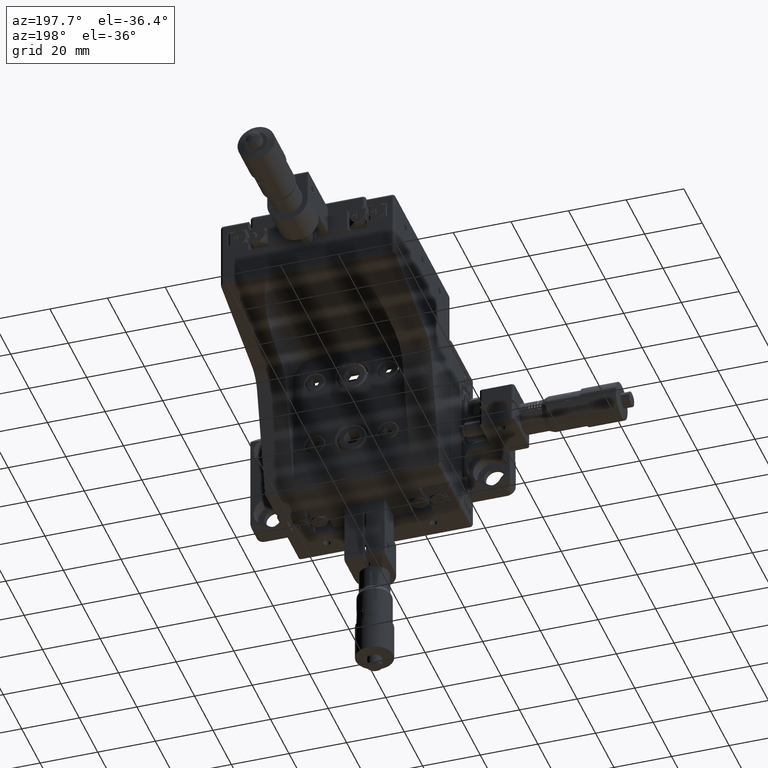
[diagram: clean part render]
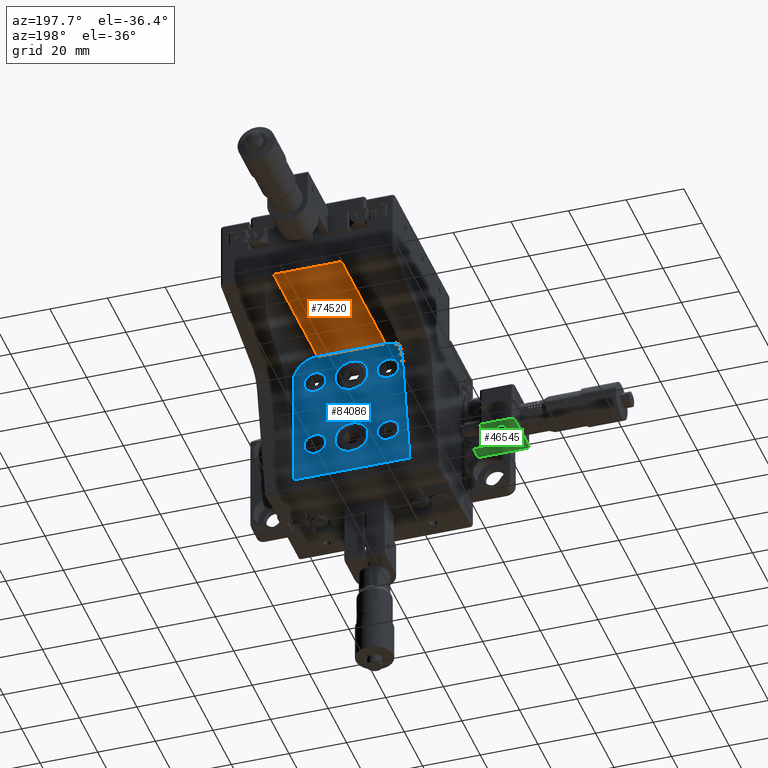
[diagram: same view with three faces highlighted in distinct colors, each labeled with its STEP entity id]
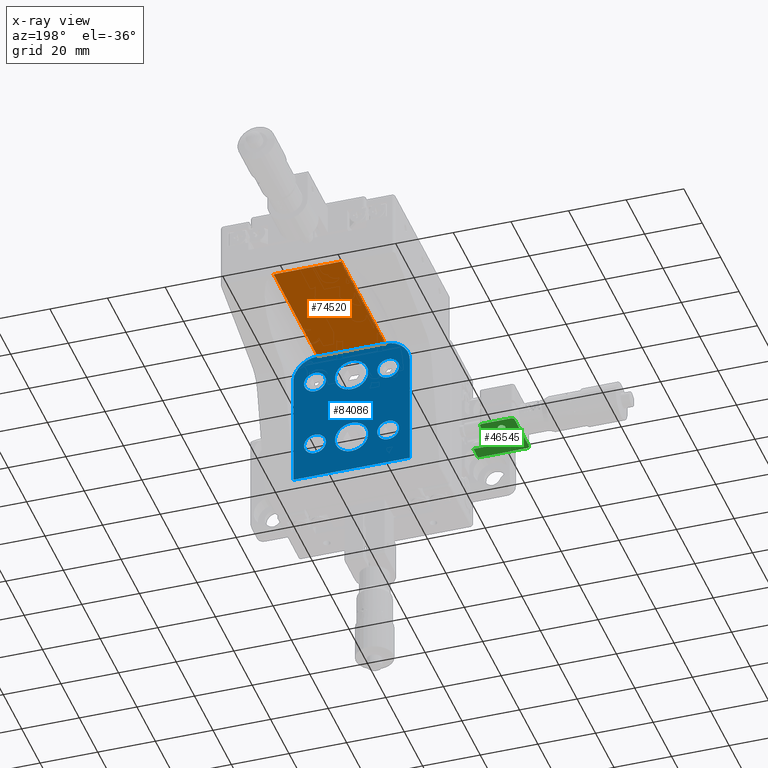
[diagram: x-ray of the same camera — body ghosted, the three highlighted faces saturated]
A machine part, auxiliary view with three faces highlighted in distinct colors.
The next image is the same camera in x-ray (body ghosted, the three faces saturated) — at least one of them is partly hidden behind the body in this view.
Their STEP definitions:

[orange] entity #74520 — the highlighted planar face has unit normal (0, 0, 1).
#4349 = CARTESIAN_POINT ( 'NONE',  ( 11.75000000000023600, 37.29999999999989800, 23.00000000000156700 ) ) ;
#5624 = EDGE_CURVE ( 'NONE', #69417, #17641, #11126, .T. ) ;
#10739 = CARTESIAN_POINT ( 'NONE',  ( 11.75000000000023600, 37.29999999999989800, 23.00000000000156700 ) ) ;
#11126 = LINE ( 'NONE', #23947, #47807 ) ;
#11332 = DIRECTION ( 'NONE',  ( 1.000000000000000000, -9.801187639273052300E-017, -1.062728510393519400E-014 ) ) ;
#11888 = ORIENTED_EDGE ( 'NONE', *, *, #42617, .T. ) ;
#12180 = VERTEX_POINT ( 'NONE', #33542 ) ;
#17641 = VERTEX_POINT ( 'NONE', #63613 ) ;
#18682 = VECTOR ( 'NONE', #32008, 1000.000000000000000 ) ;
#20136 = ORIENTED_EDGE ( 'NONE', *, *, #46000, .F. ) ;
#20641 = FACE_OUTER_BOUND ( 'NONE', #42185, .T. ) ;
#23947 = CARTESIAN_POINT ( 'NONE',  ( -11.74999999999976400, 37.29999999999989800, 23.00000000000182300 ) ) ;
#26081 = DIRECTION ( 'NONE',  ( 1.000000000000000000, -1.184931223549757600E-015, -1.062728510393519400E-014 ) ) ;
#27006 = LINE ( 'NONE', #60560, #61632 ) ;
#30666 = ORIENTED_EDGE ( 'NONE', *, *, #75141, .F. ) ;
#31230 = VECTOR ( 'NONE', #59062, 1000.000000000000000 ) ;
#32008 = DIRECTION ( 'NONE',  ( 1.000000000000000000, -9.801187639273052300E-017, -1.062728510393519400E-014 ) ) ;
#33542 = CARTESIAN_POINT ( 'NONE',  ( 11.75000000000024300, 85.29984404295234400, 23.00000000000156700 ) ) ;
#37005 = LINE ( 'NONE', #86396, #18682 ) ;
#40534 = CARTESIAN_POINT ( 'NONE',  ( 11.75000000000023600, 37.29999999999989800, 23.00000000000156700 ) ) ;
#42185 = EDGE_LOOP ( 'NONE', ( #11888, #30666, #20136, #82849 ) ) ;
#42617 = EDGE_CURVE ( 'NONE', #17641, #12180, #27006, .T. ) ;
#46000 = EDGE_CURVE ( 'NONE', #69417, #67757, #37005, .T. ) ;
#47807 = VECTOR ( 'NONE', #72357, 1000.000000000000000 ) ;
#52375 = PLANE ( 'NONE',  #76891 ) ;
#52679 = DIRECTION ( 'NONE',  ( 1.062728510393519400E-014, 2.374402757743493500E-017, 1.000000000000000000 ) ) ;
#59062 = DIRECTION ( 'NONE',  ( 1.535230276239501100E-016, 1.000000000000000000, -2.374402757743618900E-017 ) ) ;
#60560 = CARTESIAN_POINT ( 'NONE',  ( 30.25000000000023800, 85.29984404295230100, 23.00000000000136800 ) ) ;
#61632 = VECTOR ( 'NONE', #26081, 1000.000000000000000 ) ;
#63613 = CARTESIAN_POINT ( 'NONE',  ( -11.74999999999975700, 85.29984404295237300, 23.00000000000181900 ) ) ;
#67757 = VERTEX_POINT ( 'NONE', #40534 ) ;
#69417 = VERTEX_POINT ( 'NONE', #88076 ) ;
#72357 = DIRECTION ( 'NONE',  ( 1.535230276239501100E-016, 1.000000000000000000, -2.374402757743618900E-017 ) ) ;
#74520 = ADVANCED_FACE ( 'NONE', ( #20641 ), #52375, .F. ) ;
#75141 = EDGE_CURVE ( 'NONE', #67757, #12180, #84160, .T. ) ;
#76891 = AXIS2_PLACEMENT_3D ( 'NONE', #4349, #52679, #11332 ) ;
#82849 = ORIENTED_EDGE ( 'NONE', *, *, #5624, .T. ) ;
#84160 = LINE ( 'NONE', #10739, #31230 ) ;
#86396 = CARTESIAN_POINT ( 'NONE',  ( 11.75000000000023600, 37.29999999999989800, 23.00000000000156700 ) ) ;
#88076 = CARTESIAN_POINT ( 'NONE',  ( -11.74999999999976400, 37.29999999999989800, 23.00000000000182300 ) ) ;

[blue] entity #84086 — the highlighted planar face has unit normal (-0, -1, 0).
#212 = CARTESIAN_POINT ( 'NONE',  ( 20.25000000000013100, 37.29999999999989800, 14.50000000000149000 ) ) ;
#1385 = AXIS2_PLACEMENT_3D ( 'NONE', #4598, #52900, #11555 ) ;
#1777 = EDGE_LOOP ( 'NONE', ( #37270, #83965 ) ) ;
#2281 = CARTESIAN_POINT ( 'NONE',  ( -1.878237630009716100E-013, 37.29999999999989800, -18.45436999999831300 ) ) ;
#2692 = EDGE_CURVE ( 'NONE', #8856, #38206, #74186, .T. ) ;
#2759 = AXIS2_PLACEMENT_3D ( 'NONE', #49835, #8495, #56785 ) ;
#3290 = ORIENTED_EDGE ( 'NONE', *, *, #55294, .T. ) ;
#3603 = CIRCLE ( 'NONE', #64088, 3.770629999999997000 ) ;
#3776 = ORIENTED_EDGE ( 'NONE', *, *, #64044, .F. ) ;
#3888 = CIRCLE ( 'NONE', #15025, 8.499999999999987600 ) ;
#4150 = CARTESIAN_POINT ( 'NONE',  ( -12.70000000000009000, 37.29999999999989800, -8.929369999998179700 ) ) ;
#4387 = CIRCLE ( 'NONE', #30864, 3.770629999999997000 ) ;
#4598 = CARTESIAN_POINT ( 'NONE',  ( 12.70000000000013800, 37.29999999999989800, 12.70000000000156400 ) ) ;
#5126 = VERTEX_POINT ( 'NONE', #79925 ) ;
#5272 = CARTESIAN_POINT ( 'NONE',  ( 12.70000000000010100, 37.29999999999989800, 8.929370000001567200 ) ) ;
#5389 = CIRCLE ( 'NONE', #63707, 5.754370000000001500 ) ;
#5863 = DIRECTION ( 'NONE',  ( 1.535230276239501100E-016, 1.000000000000000000, -2.374402757743618900E-017 ) ) ;
#6840 = CARTESIAN_POINT ( 'NONE',  ( -1.283695372222837200E-013, 37.29999999999989800, -12.69999999999831000 ) ) ;
#8097 = EDGE_CURVE ( 'NONE', #47310, #39276, #56777, .T. ) ;
#8495 = DIRECTION ( 'NONE',  ( 1.535230276239501100E-016, 1.000000000000000000, -2.374402757743618900E-017 ) ) ;
#8856 = VERTEX_POINT ( 'NONE', #45057 ) ;
#9821 = CARTESIAN_POINT ( 'NONE',  ( -12.69999999999990200, 37.29999999999989800, 8.929370000001828300 ) ) ;
#10177 = DIRECTION ( 'NONE',  ( 1.535230276239501100E-016, 1.000000000000000000, -2.374402757743618900E-017 ) ) ;
#11535 = EDGE_CURVE ( 'NONE', #63652, #18922, #25898, .T. ) ;
#11555 = DIRECTION ( 'NONE',  ( -1.012136339855403200E-014, 0.0000000000000000000, -1.000000000000000000 ) ) ;
#11795 = CARTESIAN_POINT ( 'NONE',  ( -12.69999999999986400, 37.29999999999989800, 12.70000000000182700 ) ) ;
#12092 = ORIENTED_EDGE ( 'NONE', *, *, #39623, .T. ) ;
#12149 = CIRCLE ( 'NONE', #37429, 5.754370000000001500 ) ;
#12257 = CARTESIAN_POINT ( 'NONE',  ( -20.24999999999984400, 37.29999999999989800, 14.50000000000191500 ) ) ;
#12534 = VERTEX_POINT ( 'NONE', #9821 ) ;
#12720 = VERTEX_POINT ( 'NONE', #67192 ) ;
#12877 = ORIENTED_EDGE ( 'NONE', *, *, #2692, .T. ) ;
#13568 = EDGE_LOOP ( 'NONE', ( #60976, #21940 ) ) ;
#13717 = DIRECTION ( 'NONE',  ( 1.535230276239501100E-016, 1.000000000000000000, -2.374402757743618900E-017 ) ) ;
#13790 = DIRECTION ( 'NONE',  ( -1.033201302291786500E-014, 0.0000000000000000000, -1.000000000000000000 ) ) ;
#13948 = AXIS2_PLACEMENT_3D ( 'NONE', #51514, #10177, #58483 ) ;
#14153 = CARTESIAN_POINT ( 'NONE',  ( 7.585420534750305500E-014, 37.29999999999989800, 6.945630000001694200 ) ) ;
#14254 = FACE_BOUND ( 'NONE', #1777, .T. ) ;
#15025 = AXIS2_PLACEMENT_3D ( 'NONE', #79351, #37916, #86296 ) ;
#16190 = LINE ( 'NONE', #12257, #50721 ) ;
#16420 = FACE_BOUND ( 'NONE', #13568, .T. ) ;
#17318 = DIRECTION ( 'NONE',  ( 1.535230276239501100E-016, 1.000000000000000000, -2.374402757743618900E-017 ) ) ;
#17568 = VERTEX_POINT ( 'NONE', #212 ) ;
#18059 = VERTEX_POINT ( 'NONE', #41980 ) ;
#18373 = AXIS2_PLACEMENT_3D ( 'NONE', #32620, #80947, #39490 ) ;
#18682 = VECTOR ( 'NONE', #32008, 1000.000000000000000 ) ;
#18738 = DIRECTION ( 'NONE',  ( -1.012136339855402700E-014, 0.0000000000000000000, -1.000000000000000000 ) ) ;
#18922 = VERTEX_POINT ( 'NONE', #54798 ) ;
#19131 = EDGE_CURVE ( 'NONE', #17568, #8856, #53198, .T. ) ;
#20010 = VERTEX_POINT ( 'NONE', #14153 ) ;
#20186 = DIRECTION ( 'NONE',  ( 1.535230276239501100E-016, 1.000000000000000000, -2.374402757743618900E-017 ) ) ;
#21413 = ORIENTED_EDGE ( 'NONE', *, *, #79655, .F. ) ;
#21940 = ORIENTED_EDGE ( 'NONE', *, *, #64179, .F. ) ;
#22307 = EDGE_CURVE ( 'NONE', #29107, #18059, #12149, .T. ) ;
#22374 = DIRECTION ( 'NONE',  ( 1.535230276239501100E-016, 1.000000000000000000, -2.374402757743618900E-017 ) ) ;
#22750 = DIRECTION ( 'NONE',  ( -1.000000000000000000, 9.801187639273051100E-017, 1.033201302291786500E-014 ) ) ;
#24236 = ORIENTED_EDGE ( 'NONE', *, *, #46000, .T. ) ;
#25553 = CARTESIAN_POINT ( 'NONE',  ( 11.75000000000015300, 37.29999999999989800, 14.50000000000157400 ) ) ;
#25898 = CIRCLE ( 'NONE', #13948, 3.770629999999997000 ) ;
#27585 = DIRECTION ( 'NONE',  ( 1.095573382326907700E-014, 2.374402757743490100E-017, 1.000000000000000000 ) ) ;
#28108 = CIRCLE ( 'NONE', #1385, 3.770629999999997000 ) ;
#28452 = ORIENTED_EDGE ( 'NONE', *, *, #72758, .F. ) ;
#29107 = VERTEX_POINT ( 'NONE', #2281 ) ;
#29389 = CARTESIAN_POINT ( 'NONE',  ( 30.24999999999973400, 37.29999999999989100, -25.80318041582689000 ) ) ;
#29473 = CIRCLE ( 'NONE', #48205, 8.499999999999991100 ) ;
#29988 = DIRECTION ( 'NONE',  ( 1.535230276239501100E-016, 1.000000000000000000, -2.374402757743618900E-017 ) ) ;
#30371 = CARTESIAN_POINT ( 'NONE',  ( 12.69999999999990500, 37.29999999999989800, -8.929369999998444400 ) ) ;
#30810 = CIRCLE ( 'NONE', #34343, 5.754370000000001500 ) ;
#30864 = AXIS2_PLACEMENT_3D ( 'NONE', #71430, #29988, #78335 ) ;
#31390 = EDGE_CURVE ( 'NONE', #67757, #17568, #3888, .T. ) ;
#32008 = DIRECTION ( 'NONE',  ( 1.000000000000000000, -9.801187639273052300E-017, -1.062728510393519400E-014 ) ) ;
#32277 = VERTEX_POINT ( 'NONE', #82790 ) ;
#32422 = EDGE_CURVE ( 'NONE', #20010, #5126, #5389, .T. ) ;
#32491 = DIRECTION ( 'NONE',  ( 1.033201302291786600E-014, 2.374402757743496300E-017, 1.000000000000000000 ) ) ;
#32605 = FACE_BOUND ( 'NONE', #65092, .T. ) ;
#32620 = CARTESIAN_POINT ( 'NONE',  ( -12.69999999999986400, 37.29999999999989800, 12.70000000000182700 ) ) ;
#33581 = EDGE_LOOP ( 'NONE', ( #40894, #28452 ) ) ;
#33947 = EDGE_CURVE ( 'NONE', #5126, #20010, #30810, .T. ) ;
#34343 = AXIS2_PLACEMENT_3D ( 'NONE', #47165, #5863, #54139 ) ;
#34844 = VECTOR ( 'NONE', #58414, 1000.000000000000000 ) ;
#36777 = AXIS2_PLACEMENT_3D ( 'NONE', #6840, #55116, #13790 ) ;
#37005 = LINE ( 'NONE', #86396, #18682 ) ;
#37270 = ORIENTED_EDGE ( 'NONE', *, *, #32422, .F. ) ;
#37429 = AXIS2_PLACEMENT_3D ( 'NONE', #55031, #13717, #62038 ) ;
#37916 = DIRECTION ( 'NONE',  ( 1.535230276239501100E-016, 1.000000000000000000, -2.374402757743618900E-017 ) ) ;
#38206 = VERTEX_POINT ( 'NONE', #60590 ) ;
#39276 = VERTEX_POINT ( 'NONE', #39731 ) ;
#39490 = DIRECTION ( 'NONE',  ( -1.012136339855402700E-014, 0.0000000000000000000, -1.000000000000000000 ) ) ;
#39623 = EDGE_CURVE ( 'NONE', #38206, #12720, #16190, .T. ) ;
#39731 = CARTESIAN_POINT ( 'NONE',  ( -12.70000000000016600, 37.29999999999989800, -16.47062999999817400 ) ) ;
#40534 = CARTESIAN_POINT ( 'NONE',  ( 11.75000000000023600, 37.29999999999989800, 23.00000000000156700 ) ) ;
#40894 = ORIENTED_EDGE ( 'NONE', *, *, #22307, .F. ) ;
#41136 = DIRECTION ( 'NONE',  ( 1.535230276239501100E-016, 1.000000000000000000, -2.374402757743618900E-017 ) ) ;
#41980 = CARTESIAN_POINT ( 'NONE',  ( -7.008210748460210900E-014, 37.29999999999989800, -6.945629999998309300 ) ) ;
#44277 = EDGE_CURVE ( 'NONE', #12534, #81037, #79500, .T. ) ;
#45057 = CARTESIAN_POINT ( 'NONE',  ( 20.24999999999975100, 37.29999999999989100, -25.80318041582679100 ) ) ;
#46000 = EDGE_CURVE ( 'NONE', #69417, #67757, #37005, .T. ) ;
#46149 = ORIENTED_EDGE ( 'NONE', *, *, #19131, .T. ) ;
#47165 = CARTESIAN_POINT ( 'NONE',  ( 1.353084311261909500E-013, 37.29999999999989800, 12.70000000000169600 ) ) ;
#47310 = VERTEX_POINT ( 'NONE', #4150 ) ;
#47849 = VERTEX_POINT ( 'NONE', #5272 ) ;
#48205 = AXIS2_PLACEMENT_3D ( 'NONE', #58695, #17318, #65625 ) ;
#49835 = CARTESIAN_POINT ( 'NONE',  ( 12.70000000000013800, 37.29999999999989800, 12.70000000000156400 ) ) ;
#50721 = VECTOR ( 'NONE', #27585, 1000.000000000000000 ) ;
#51514 = CARTESIAN_POINT ( 'NONE',  ( 12.69999999999986800, 37.29999999999989800, -12.69999999999844100 ) ) ;
#52900 = DIRECTION ( 'NONE',  ( 1.535230276239501100E-016, 1.000000000000000000, -2.374402757743618900E-017 ) ) ;
#53198 = LINE ( 'NONE', #85894, #34844 ) ;
#53332 = AXIS2_PLACEMENT_3D ( 'NONE', #25553, #73916, #32491 ) ;
#54139 = DIRECTION ( 'NONE',  ( -1.033201302291786600E-014, 0.0000000000000000000, -1.000000000000000000 ) ) ;
#54348 = EDGE_CURVE ( 'NONE', #81037, #12534, #67552, .T. ) ;
#54798 = CARTESIAN_POINT ( 'NONE',  ( 12.69999999999982900, 37.29999999999989800, -16.47062999999844000 ) ) ;
#55031 = CARTESIAN_POINT ( 'NONE',  ( -1.283695372222837200E-013, 37.29999999999989800, -12.69999999999831000 ) ) ;
#55116 = DIRECTION ( 'NONE',  ( 1.535230276239501100E-016, 1.000000000000000000, -2.374402757743618900E-017 ) ) ;
#55294 = EDGE_CURVE ( 'NONE', #12720, #69417, #29473, .T. ) ;
#55726 = VECTOR ( 'NONE', #22750, 1000.000000000000000 ) ;
#56777 = CIRCLE ( 'NONE', #79378, 3.770629999999997000 ) ;
#56785 = DIRECTION ( 'NONE',  ( -1.012136339855403200E-014, 0.0000000000000000000, -1.000000000000000000 ) ) ;
#57691 = EDGE_CURVE ( 'NONE', #47849, #32277, #85181, .T. ) ;
#58414 = DIRECTION ( 'NONE',  ( -9.552362022478851900E-015, -2.374402757743504000E-017, -1.000000000000000000 ) ) ;
#58483 = DIRECTION ( 'NONE',  ( -1.012136339855403200E-014, 0.0000000000000000000, -1.000000000000000000 ) ) ;
#58695 = CARTESIAN_POINT ( 'NONE',  ( -11.74999999999984700, 37.29999999999989800, 14.50000000000182400 ) ) ;
#59713 = ORIENTED_EDGE ( 'NONE', *, *, #11535, .F. ) ;
#60127 = DIRECTION ( 'NONE',  ( 1.535230276239501100E-016, 1.000000000000000000, -2.374402757743618900E-017 ) ) ;
#60590 = CARTESIAN_POINT ( 'NONE',  ( -20.25000000000028100, 37.29999999999989800, -25.80318041582636100 ) ) ;
#60976 = ORIENTED_EDGE ( 'NONE', *, *, #57691, .F. ) ;
#61573 = CARTESIAN_POINT ( 'NONE',  ( -12.70000000000012700, 37.29999999999989800, -12.69999999999817900 ) ) ;
#62038 = DIRECTION ( 'NONE',  ( -1.033201302291786500E-014, 0.0000000000000000000, -1.000000000000000000 ) ) ;
#63228 = AXIS2_PLACEMENT_3D ( 'NONE', #11795, #60127, #18738 ) ;
#63652 = VERTEX_POINT ( 'NONE', #30371 ) ;
#63707 = AXIS2_PLACEMENT_3D ( 'NONE', #63757, #22374, #70781 ) ;
#63757 = CARTESIAN_POINT ( 'NONE',  ( 1.353084311261909500E-013, 37.29999999999989800, 12.70000000000169600 ) ) ;
#64044 = EDGE_CURVE ( 'NONE', #39276, #47310, #4387, .T. ) ;
#64088 = AXIS2_PLACEMENT_3D ( 'NONE', #82565, #41136, #89538 ) ;
#64179 = EDGE_CURVE ( 'NONE', #32277, #47849, #28108, .T. ) ;
#65092 = EDGE_LOOP ( 'NONE', ( #76979, #72583 ) ) ;
#65625 = DIRECTION ( 'NONE',  ( -1.040834085586085400E-014, 0.0000000000000000000, -1.000000000000000000 ) ) ;
#67192 = CARTESIAN_POINT ( 'NONE',  ( -20.24999999999984400, 37.29999999999989800, 14.50000000000191500 ) ) ;
#67220 = FACE_OUTER_BOUND ( 'NONE', #77274, .T. ) ;
#67552 = CIRCLE ( 'NONE', #63228, 3.770629999999998800 ) ;
#67757 = VERTEX_POINT ( 'NONE', #40534 ) ;
#68558 = DIRECTION ( 'NONE',  ( -1.012136339855403200E-014, 0.0000000000000000000, -1.000000000000000000 ) ) ;
#69374 = CARTESIAN_POINT ( 'NONE',  ( -12.69999999999982500, 37.29999999999989800, 16.47063000000182600 ) ) ;
#69389 = FACE_BOUND ( 'NONE', #74890, .T. ) ;
#69417 = VERTEX_POINT ( 'NONE', #88076 ) ;
#69573 = CIRCLE ( 'NONE', #36777, 5.754370000000001500 ) ;
#70781 = DIRECTION ( 'NONE',  ( -1.033201302291786600E-014, 0.0000000000000000000, -1.000000000000000000 ) ) ;
#71430 = CARTESIAN_POINT ( 'NONE',  ( -12.70000000000012700, 37.29999999999989800, -12.69999999999817900 ) ) ;
#72583 = ORIENTED_EDGE ( 'NONE', *, *, #54348, .F. ) ;
#72630 = EDGE_LOOP ( 'NONE', ( #3776, #85561 ) ) ;
#72758 = EDGE_CURVE ( 'NONE', #18059, #29107, #69573, .T. ) ;
#73219 = ORIENTED_EDGE ( 'NONE', *, *, #31390, .T. ) ;
#73916 = DIRECTION ( 'NONE',  ( -1.535230276239501100E-016, -1.000000000000000000, 2.374402757743655000E-017 ) ) ;
#74186 = LINE ( 'NONE', #29389, #55726 ) ;
#74890 = EDGE_LOOP ( 'NONE', ( #21413, #59713 ) ) ;
#76979 = ORIENTED_EDGE ( 'NONE', *, *, #44277, .F. ) ;
#77274 = EDGE_LOOP ( 'NONE', ( #12877, #12092, #3290, #24236, #73219, #46149 ) ) ;
#78335 = DIRECTION ( 'NONE',  ( -1.012136339855403200E-014, 0.0000000000000000000, -1.000000000000000000 ) ) ;
#79351 = CARTESIAN_POINT ( 'NONE',  ( 11.75000000000015300, 37.29999999999989800, 14.50000000000157400 ) ) ;
#79378 = AXIS2_PLACEMENT_3D ( 'NONE', #61573, #20186, #68558 ) ;
#79500 = CIRCLE ( 'NONE', #18373, 3.770629999999998800 ) ;
#79655 = EDGE_CURVE ( 'NONE', #18922, #63652, #3603, .T. ) ;
#79925 = CARTESIAN_POINT ( 'NONE',  ( 1.935958608638725300E-013, 37.29999999999989800, 18.45437000000169900 ) ) ;
#80947 = DIRECTION ( 'NONE',  ( 1.535230276239501100E-016, 1.000000000000000000, -2.374402757743618900E-017 ) ) ;
#81037 = VERTEX_POINT ( 'NONE', #69374 ) ;
#82565 = CARTESIAN_POINT ( 'NONE',  ( 12.69999999999986800, 37.29999999999989800, -12.69999999999844100 ) ) ;
#82790 = CARTESIAN_POINT ( 'NONE',  ( 12.70000000000017700, 37.29999999999989800, 16.47063000000156000 ) ) ;
#83965 = ORIENTED_EDGE ( 'NONE', *, *, #33947, .F. ) ;
#84086 = ADVANCED_FACE ( 'NONE', ( #32605, #87736, #69389, #16420, #14254, #85552, #67220 ), #87482, .F. ) ;
#85181 = CIRCLE ( 'NONE', #2759, 3.770629999999997000 ) ;
#85552 = FACE_BOUND ( 'NONE', #33581, .T. ) ;
#85561 = ORIENTED_EDGE ( 'NONE', *, *, #8097, .F. ) ;
#85894 = CARTESIAN_POINT ( 'NONE',  ( 20.24999999999970200, 37.29999999999989100, -29.99999999999852200 ) ) ;
#86296 = DIRECTION ( 'NONE',  ( 1.040834085586085800E-014, 0.0000000000000000000, 1.000000000000000000 ) ) ;
#86396 = CARTESIAN_POINT ( 'NONE',  ( 11.75000000000023600, 37.29999999999989800, 23.00000000000156700 ) ) ;
#87482 = PLANE ( 'NONE',  #53332 ) ;
#87736 = FACE_BOUND ( 'NONE', #72630, .T. ) ;
#88076 = CARTESIAN_POINT ( 'NONE',  ( -11.74999999999976400, 37.29999999999989800, 23.00000000000182300 ) ) ;
#89538 = DIRECTION ( 'NONE',  ( -1.012136339855403200E-014, 0.0000000000000000000, -1.000000000000000000 ) ) ;

[green] entity #46545 — the highlighted planar face has unit normal (-0, 0, -1).
#317 = EDGE_CURVE ( 'NONE', #83489, #57352, #15674, .T. ) ;
#586 = CARTESIAN_POINT ( 'NONE',  ( -52.00000000000000700, 23.80000000000004300, -6.999999999999887200 ) ) ;
#908 = DIRECTION ( 'NONE',  ( -1.000000000000000000, 1.110223024625156500E-016, 1.084202172485504400E-017 ) ) ;
#1164 = AXIS2_PLACEMENT_3D ( 'NONE', #61438, #20054, #68413 ) ;
#2658 = ORIENTED_EDGE ( 'NONE', *, *, #37470, .F. ) ;
#3184 = CARTESIAN_POINT ( 'NONE',  ( -45.00000000000000700, 6.300000000000040700, -6.999999999999886300 ) ) ;
#4106 = CARTESIAN_POINT ( 'NONE',  ( -40.00000000000003600, 11.30000000000004300, -6.999999999999887200 ) ) ;
#4626 = DIRECTION ( 'NONE',  ( -1.000000000000000000, 1.110223024625156500E-016, 1.084202172485504400E-017 ) ) ;
#4636 = VERTEX_POINT ( 'NONE', #51938 ) ;
#4935 = EDGE_CURVE ( 'NONE', #23430, #5590, #19646, .T. ) ;
#5590 = VERTEX_POINT ( 'NONE', #58097 ) ;
#6328 = CARTESIAN_POINT ( 'NONE',  ( -46.50000000000000700, 19.90000000000004100, -6.999999999999887200 ) ) ;
#7693 = CIRCLE ( 'NONE', #66220, 1.000000000000000900 ) ;
#7809 = EDGE_CURVE ( 'NONE', #70868, #83489, #40599, .T. ) ;
#8867 = DIRECTION ( 'NONE',  ( -8.326672684688671600E-017, -1.000000000000000000, -0.0000000000000000000 ) ) ;
#9123 = CARTESIAN_POINT ( 'NONE',  ( -45.25000000000001400, 19.90000000000004100, -6.999999999999887200 ) ) ;
#10411 = DIRECTION ( 'NONE',  ( 0.0000000000000000000, 0.0000000000000000000, -1.000000000000000000 ) ) ;
#11682 = CARTESIAN_POINT ( 'NONE',  ( -37.31083962536210700, 6.300000000000031800, -6.999999999999886300 ) ) ;
#13173 = CARTESIAN_POINT ( 'NONE',  ( -52.00000000000000700, 22.80000000000004300, -6.999999999999887200 ) ) ;
#13290 = DIRECTION ( 'NONE',  ( -1.000000000000000000, 0.0000000000000000000, 0.0000000000000000000 ) ) ;
#13933 = DIRECTION ( 'NONE',  ( 0.0000000000000000000, 0.0000000000000000000, -1.000000000000000000 ) ) ;
#14186 = FACE_OUTER_BOUND ( 'NONE', #44616, .T. ) ;
#15674 = LINE ( 'NONE', #72477, #84782 ) ;
#15687 = VECTOR ( 'NONE', #85791, 1000.000000000000000 ) ;
#16390 = EDGE_CURVE ( 'NONE', #49672, #38150, #34396, .T. ) ;
#16595 = VERTEX_POINT ( 'NONE', #9123 ) ;
#17457 = DIRECTION ( 'NONE',  ( -6.439293542825925300E-015, 1.000000000000000000, 7.071774014546900300E-032 ) ) ;
#17477 = ORIENTED_EDGE ( 'NONE', *, *, #64396, .T. ) ;
#19646 = LINE ( 'NONE', #586, #72649 ) ;
#19685 = DIRECTION ( 'NONE',  ( -1.000000000000000000, 1.110223024625156500E-016, 1.084202172485504400E-017 ) ) ;
#20054 = DIRECTION ( 'NONE',  ( -1.084202172485504400E-017, 1.203706215242022400E-033, -1.000000000000000000 ) ) ;
#22625 = DIRECTION ( 'NONE',  ( 0.0000000000000000000, 0.0000000000000000000, -1.000000000000000000 ) ) ;
#23280 = CARTESIAN_POINT ( 'NONE',  ( -31.00000000000000400, 11.30000000000004200, -6.999999999999887200 ) ) ;
#23430 = VERTEX_POINT ( 'NONE', #13173 ) ;
#25065 = ORIENTED_EDGE ( 'NONE', *, *, #7809, .F. ) ;
#26304 = LINE ( 'NONE', #49163, #44648 ) ;
#26437 = CIRCLE ( 'NONE', #35149, 1.000000000000000900 ) ;
#28432 = EDGE_CURVE ( 'NONE', #49917, #84820, #26304, .T. ) ;
#29092 = ORIENTED_EDGE ( 'NONE', *, *, #44678, .T. ) ;
#29571 = AXIS2_PLACEMENT_3D ( 'NONE', #51746, #10411, #58724 ) ;
#29973 = EDGE_CURVE ( 'NONE', #4636, #16595, #45253, .T. ) ;
#30074 = AXIS2_PLACEMENT_3D ( 'NONE', #6328, #54608, #13290 ) ;
#30440 = CARTESIAN_POINT ( 'NONE',  ( -51.00000000000000700, 22.80000000000004300, -6.999999999999887200 ) ) ;
#33275 = CARTESIAN_POINT ( 'NONE',  ( -51.00000000000000700, 6.300000000000041600, -6.999999999999886300 ) ) ;
#34396 = LINE ( 'NONE', #79999, #48365 ) ;
#35149 = AXIS2_PLACEMENT_3D ( 'NONE', #30440, #78756, #37335 ) ;
#35672 = CARTESIAN_POINT ( 'NONE',  ( -34.00000000000000000, 6.300000000000039800, -6.999999999999886300 ) ) ;
#36336 = CARTESIAN_POINT ( 'NONE',  ( -34.00000000000000000, 6.300000000000039800, -6.999999999999887200 ) ) ;
#37242 = CARTESIAN_POINT ( 'NONE',  ( -40.00000000000011400, 22.80000000000005000, -6.999999999999887200 ) ) ;
#37335 = DIRECTION ( 'NONE',  ( -1.000000000000000000, 0.0000000000000000000, 0.0000000000000000000 ) ) ;
#37470 = EDGE_CURVE ( 'NONE', #16595, #4636, #56643, .T. ) ;
#38150 = VERTEX_POINT ( 'NONE', #11682 ) ;
#38261 = CARTESIAN_POINT ( 'NONE',  ( -34.00000000000000000, 11.30000000000004200, -6.999999999999887200 ) ) ;
#40599 = LINE ( 'NONE', #23280, #59082 ) ;
#41646 = ORIENTED_EDGE ( 'NONE', *, *, #60896, .T. ) ;
#44616 = EDGE_LOOP ( 'NONE', ( #86742, #17477, #82713, #29092, #47856, #41646, #88253, #25065, #70537, #84405, #66974, #81135 ) ) ;
#44648 = VECTOR ( 'NONE', #908, 1000.000000000000000 ) ;
#44678 = EDGE_CURVE ( 'NONE', #23430, #84820, #26437, .T. ) ;
#45253 = CIRCLE ( 'NONE', #30074, 1.249999999999994200 ) ;
#46545 = ADVANCED_FACE ( 'NONE', ( #69325, #14186 ), #75075, .T. ) ;
#47087 = LINE ( 'NONE', #36336, #61207 ) ;
#47345 = CARTESIAN_POINT ( 'NONE',  ( -41.00000000000010700, 23.80000000000004300, -6.999999999999887200 ) ) ;
#47856 = ORIENTED_EDGE ( 'NONE', *, *, #28432, .F. ) ;
#48365 = VECTOR ( 'NONE', #74006, 1000.000000000000000 ) ;
#49163 = CARTESIAN_POINT ( 'NONE',  ( 45.00000000000000000, 23.80000000000003600, -6.999999999999888100 ) ) ;
#49672 = VERTEX_POINT ( 'NONE', #35672 ) ;
#49917 = VERTEX_POINT ( 'NONE', #47345 ) ;
#50888 = CARTESIAN_POINT ( 'NONE',  ( -38.88916037463792500, 6.300000000000031800, -6.999999999999886300 ) ) ;
#51746 = CARTESIAN_POINT ( 'NONE',  ( -41.00000000000010700, 22.80000000000004300, -6.999999999999887200 ) ) ;
#51938 = CARTESIAN_POINT ( 'NONE',  ( -47.75000000000000000, 19.90000000000004100, -6.999999999999887200 ) ) ;
#52586 = AXIS2_PLACEMENT_3D ( 'NONE', #64008, #22625, #71020 ) ;
#52936 = EDGE_CURVE ( 'NONE', #38150, #77603, #70843, .T. ) ;
#54608 = DIRECTION ( 'NONE',  ( 0.0000000000000000000, 0.0000000000000000000, -1.000000000000000000 ) ) ;
#55256 = CARTESIAN_POINT ( 'NONE',  ( -51.00000000000000700, 7.300000000000070900, -6.999999999999887200 ) ) ;
#56643 = CIRCLE ( 'NONE', #52586, 1.249999999999994200 ) ;
#57352 = VERTEX_POINT ( 'NONE', #37242 ) ;
#57918 = VECTOR ( 'NONE', #4626, 1000.000000000000000 ) ;
#58097 = CARTESIAN_POINT ( 'NONE',  ( -52.00000000000000700, 7.300000000000069100, -6.999999999999886300 ) ) ;
#58718 = EDGE_CURVE ( 'NONE', #70868, #49672, #47087, .T. ) ;
#58724 = DIRECTION ( 'NONE',  ( -1.000000000000000000, 0.0000000000000000000, 0.0000000000000000000 ) ) ;
#59082 = VECTOR ( 'NONE', #64647, 1000.000000000000000 ) ;
#59472 = CIRCLE ( 'NONE', #29571, 1.000000000000000900 ) ;
#59703 = VERTEX_POINT ( 'NONE', #33275 ) ;
#60896 = EDGE_CURVE ( 'NONE', #49917, #57352, #59472, .T. ) ;
#61207 = VECTOR ( 'NONE', #8867, 1000.000000000000000 ) ;
#61438 = CARTESIAN_POINT ( 'NONE',  ( 45.00000000000000000, 23.80000000000003600, -6.999999999999888100 ) ) ;
#62254 = DIRECTION ( 'NONE',  ( -1.000000000000000000, 0.0000000000000000000, 0.0000000000000000000 ) ) ;
#64008 = CARTESIAN_POINT ( 'NONE',  ( -46.50000000000000700, 19.90000000000004100, -6.999999999999887200 ) ) ;
#64396 = EDGE_CURVE ( 'NONE', #59703, #5590, #7693, .T. ) ;
#64647 = DIRECTION ( 'NONE',  ( -1.000000000000000000, 1.110223024625156500E-016, 1.084202172485504400E-017 ) ) ;
#66220 = AXIS2_PLACEMENT_3D ( 'NONE', #55256, #13933, #62254 ) ;
#66313 = EDGE_LOOP ( 'NONE', ( #2658, #80842 ) ) ;
#66974 = ORIENTED_EDGE ( 'NONE', *, *, #52936, .T. ) ;
#68045 = CARTESIAN_POINT ( 'NONE',  ( -31.00000000000000400, 6.300000000000038900, -6.999999999999886300 ) ) ;
#68413 = DIRECTION ( 'NONE',  ( -1.000000000000000000, 1.110223024625156500E-016, 1.084202172485504400E-017 ) ) ;
#69325 = FACE_BOUND ( 'NONE', #66313, .T. ) ;
#69776 = DIRECTION ( 'NONE',  ( -8.326672684688671600E-017, -1.000000000000000000, 4.956352788505161500E-017 ) ) ;
#70537 = ORIENTED_EDGE ( 'NONE', *, *, #58718, .T. ) ;
#70843 = LINE ( 'NONE', #78840, #15687 ) ;
#70868 = VERTEX_POINT ( 'NONE', #38261 ) ;
#71020 = DIRECTION ( 'NONE',  ( -1.000000000000000000, 0.0000000000000000000, 0.0000000000000000000 ) ) ;
#71360 = VERTEX_POINT ( 'NONE', #3184 ) ;
#72477 = CARTESIAN_POINT ( 'NONE',  ( -40.00000000000012100, 23.79999999999948900, -6.999999999999887200 ) ) ;
#72649 = VECTOR ( 'NONE', #69776, 1000.000000000000000 ) ;
#74006 = DIRECTION ( 'NONE',  ( -1.000000000000000000, 1.110223024625156500E-016, 1.084202172485504400E-017 ) ) ;
#75075 = PLANE ( 'NONE',  #1164 ) ;
#76312 = LINE ( 'NONE', #87401, #57918 ) ;
#77603 = VERTEX_POINT ( 'NONE', #50888 ) ;
#78236 = CARTESIAN_POINT ( 'NONE',  ( -51.00000000000000700, 23.80000000000004300, -6.999999999999887200 ) ) ;
#78756 = DIRECTION ( 'NONE',  ( 0.0000000000000000000, 0.0000000000000000000, -1.000000000000000000 ) ) ;
#78840 = CARTESIAN_POINT ( 'NONE',  ( -31.00000000000000400, 6.300000000000038900, -6.999999999999886300 ) ) ;
#79084 = VECTOR ( 'NONE', #19685, 1000.000000000000000 ) ;
#79999 = CARTESIAN_POINT ( 'NONE',  ( -31.00000000000000400, 6.300000000000038900, -6.999999999999886300 ) ) ;
#80842 = ORIENTED_EDGE ( 'NONE', *, *, #29973, .F. ) ;
#81135 = ORIENTED_EDGE ( 'NONE', *, *, #87929, .T. ) ;
#81220 = LINE ( 'NONE', #68045, #79084 ) ;
#82713 = ORIENTED_EDGE ( 'NONE', *, *, #4935, .F. ) ;
#83489 = VERTEX_POINT ( 'NONE', #4106 ) ;
#84405 = ORIENTED_EDGE ( 'NONE', *, *, #16390, .T. ) ;
#84782 = VECTOR ( 'NONE', #17457, 1000.000000000000000 ) ;
#84820 = VERTEX_POINT ( 'NONE', #78236 ) ;
#85791 = DIRECTION ( 'NONE',  ( -1.000000000000000000, 1.110223024625156500E-016, 1.084202172485504400E-017 ) ) ;
#86366 = EDGE_CURVE ( 'NONE', #71360, #59703, #76312, .T. ) ;
#86742 = ORIENTED_EDGE ( 'NONE', *, *, #86366, .T. ) ;
#87401 = CARTESIAN_POINT ( 'NONE',  ( -31.00000000000000400, 6.300000000000038900, -6.999999999999886300 ) ) ;
#87929 = EDGE_CURVE ( 'NONE', #77603, #71360, #81220, .T. ) ;
#88253 = ORIENTED_EDGE ( 'NONE', *, *, #317, .F. ) ;